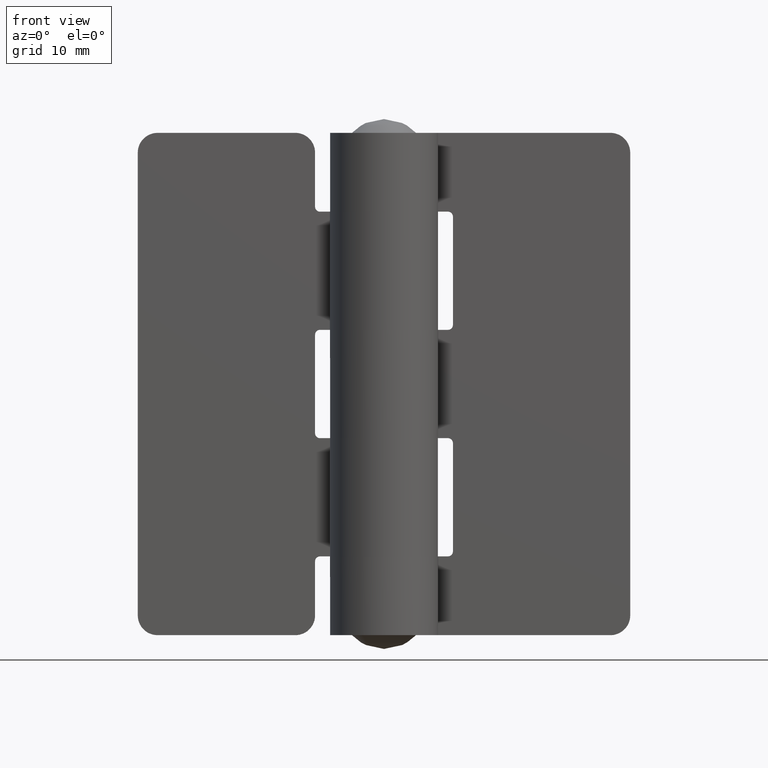
[diagram: clean part render]
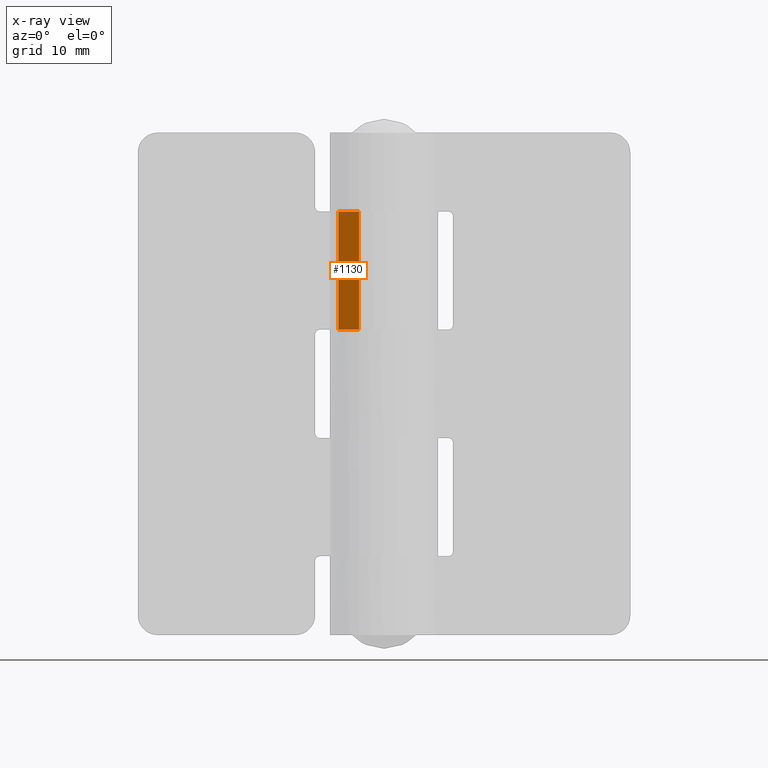
[diagram: x-ray — body ghosted, one internal face saturated and labeled with its STEP entity id]
A machine part, front view, then the same camera in x-ray: the body is ghosted and one INTERNAL B-rep face — a face not visible from any outside direction — is saturated and labeled: STEP entity #1130.
In plain terms, the highlighted face is a freeform B-spline surface patch.
Its self-contained STEP definition (entity closure, byte-faithful):
#622=CARTESIAN_POINT('',(-4.641927929212170,2.949999000000000,31.0));
#623=VERTEX_POINT('',#622);
#643=CARTESIAN_POINT('',(-2.531960305030710,1.609090119834755,31.0));
#644=VERTEX_POINT('',#643);
#645=CARTESIAN_POINT('',(-4.641927929212170,2.949999000000000,31.0));
#646=CARTESIAN_POINT('',(-2.531960305030710,1.609090119834755,31.0));
#647=QUASI_UNIFORM_CURVE('',1,(#645,#646),.UNSPECIFIED.,.F.,.U.);
#648=EDGE_CURVE('',#623,#644,#647,.T.);
#802=CARTESIAN_POINT('',(-2.531960305030710,1.609090119834755,43.0));
#803=VERTEX_POINT('',#802);
#823=CARTESIAN_POINT('',(-4.641927929212170,2.949999000000000,43.0));
#824=VERTEX_POINT('',#823);
#825=CARTESIAN_POINT('',(-4.641927929212170,2.949999000000000,43.0));
#826=CARTESIAN_POINT('',(-2.531960305030710,1.609090119834755,43.0));
#827=QUASI_UNIFORM_CURVE('',1,(#825,#826),.UNSPECIFIED.,.F.,.U.);
#828=EDGE_CURVE('',#824,#803,#827,.T.);
#1039=CARTESIAN_POINT('',(-4.641927929212170,2.949999000000000,43.0));
#1040=CARTESIAN_POINT('',(-4.641927929212170,2.949999000000000,31.0));
#1041=QUASI_UNIFORM_CURVE('',1,(#1039,#1040),.UNSPECIFIED.,.F.,.U.);
#1042=EDGE_CURVE('',#824,#623,#1041,.T.);
#1110=CARTESIAN_POINT('',(-2.531960305030710,1.609090119834755,43.0));
#1111=CARTESIAN_POINT('',(-2.531960305030710,1.609090119834755,31.0));
#1112=QUASI_UNIFORM_CURVE('',1,(#1110,#1111),.UNSPECIFIED.,.F.,.U.);
#1113=EDGE_CURVE('',#803,#644,#1112,.T.);
#1119=CARTESIAN_POINT('',(-2.426567374410064,1.542111690897625,30.400600023258320));
#1120=CARTESIAN_POINT('',(-4.747320708916177,3.016977333027847,30.400600023258320));
#1121=CARTESIAN_POINT('',(-2.426567374410064,1.542111690897625,43.599400298606760));
#1122=CARTESIAN_POINT('',(-4.747320708916177,3.016977333027847,43.599400298606760));
#1123=B_SPLINE_SURFACE_WITH_KNOTS('',1,1,((#1119,#1121),(#1120,#1122)),.UNSPECIFIED.,.F.,.F.,.U.,(2,2),(2,2),(0.0,2.749749934440846),(0.0,13.198800275348439),.UNSPECIFIED.);
#1124=ORIENTED_EDGE('',*,*,#648,.F.);
#1125=ORIENTED_EDGE('',*,*,#1042,.F.);
#1126=ORIENTED_EDGE('',*,*,#828,.T.);
#1127=ORIENTED_EDGE('',*,*,#1113,.T.);
#1128=EDGE_LOOP('',(#1124,#1125,#1126,#1127));
#1129=FACE_OUTER_BOUND('',#1128,.T.);
#1130=ADVANCED_FACE('',(#1129),#1123,.T.);